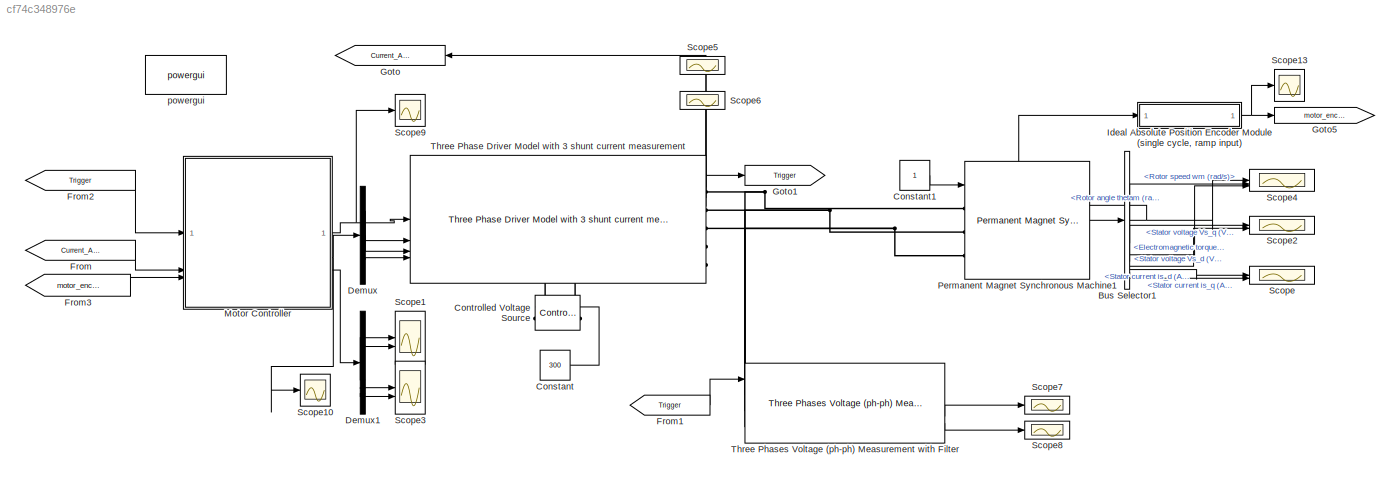
MODEL slx_cf74c348976e
KIND model
CONFIG AbsTol = auto
CONFIG EnableMultiTasking = off
CONFIG FixedStep = auto
CONFIG MaxStep = auto
CONFIG MinStep = auto
CONFIG RelTol = 1e-3
CONFIG SampleTimeConstraint = Unconstrained
CONFIG SolverName = VariableStepAuto
CONFIG StartTime = 0.0
CONFIG StopTime = 2.5
BLOCK [BusSelector] Bus Selector1
  OutputSignals = Rotor angle thetam (rad),Rotor speed wm (rad/s),Electromagnetic torque Te (N*m),Stator voltage Vs_q (V),Stator voltage Vs_d (V),Stator current is_d (A),Stator current is_q (A)
BLOCK [Constant] Constant
  Value = 300
BLOCK [Constant] Constant1
BLOCK [Reference] Controlled Voltage Source  REF=spsControlledVoltageSourceLib/Controlled Voltage Source
  LibrarySourceBlock = sps_lib/Sources/Controlled Voltage Source
  NameLocation = right
  SourceBlock = spsControlledVoltageSourceLib/Controlled Voltage Source
  SourceType = Controlled Voltage Source
BLOCK [Demux] Demux
  Outputs = 3
BLOCK [Demux] Demux1
BLOCK [From] From
  GotoTag = Current_ADC
  NameLocation = top
BLOCK [From] From1
  GotoTag = Trigger
BLOCK [From] From2
  GotoTag = Trigger
BLOCK [From] From3
  GotoTag = motor_encoder
BLOCK [Goto] Goto
  GotoTag = Current_ADC
  NameLocation = top
BLOCK [Goto] Goto1
  GotoTag = Trigger
BLOCK [Goto] Goto5
  GotoTag = motor_encoder
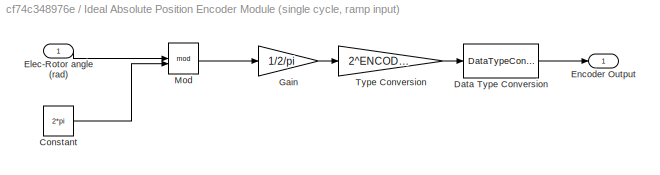
BLOCK [SubSystem] Ideal Absolute Position Encoder Module (single cycle, ramp input)
BLOCK [Constant] Ideal Absolute Position Encoder Module (single cycle, ramp input)/Constant
  Value = 2*pi
BLOCK [DataTypeConversion] Ideal Absolute Position Encoder Module (single cycle, ramp input)/Data Type Conversion
  OutDataTypeStr = uint32
  RndMeth = Floor
  SaturateOnIntegerOverflow = off
BLOCK [Inport] Ideal Absolute Position Encoder Module (single cycle, ramp input)/Elec-Rotor angle (rad)
BLOCK [Outport] Ideal Absolute Position Encoder Module (single cycle, ramp input)/Encoder Output
BLOCK [Gain] Ideal Absolute Position Encoder Module (single cycle, ramp input)/Gain
  Gain = 1/2/pi
BLOCK [Math] Ideal Absolute Position Encoder Module (single cycle, ramp input)/Mod
  Operator = mod
BLOCK [Gain] Ideal Absolute Position Encoder Module (single cycle, ramp input)/Type Conversion
  Gain = 2^ENCODER_BIT
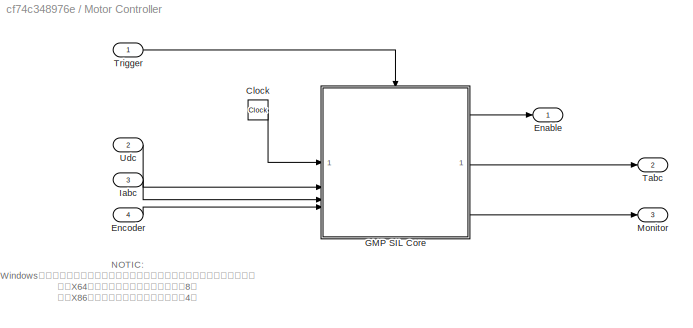
BLOCK [SubSystem] Motor Controller
BLOCK [Clock] Motor Controller/Clock
BLOCK [Outport] Motor Controller/Enable
BLOCK [Inport] Motor Controller/Encoder
  Port = 4
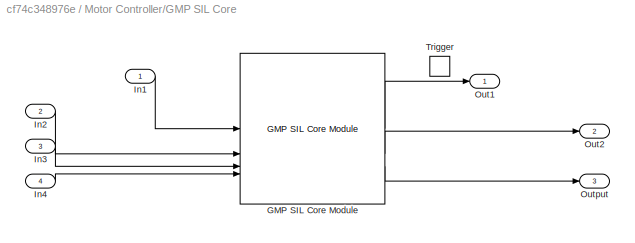
BLOCK [SubSystem] Motor Controller/GMP SIL Core
BLOCK [Reference] Motor Controller/GMP SIL Core/GMP SIL Core Module  REF=gmp_sil_core_pack/GMP SIL Core Module
  SourceBlock = gmp_sil_core_pack/GMP SIL Core Module
  SourceProductName = GMP Utilities Library
  SourceType = GMP CTL SIL Core
BLOCK [Inport] Motor Controller/GMP SIL Core/In1
BLOCK [Inport] Motor Controller/GMP SIL Core/In2
  Port = 2
BLOCK [Inport] Motor Controller/GMP SIL Core/In3
  Port = 3
BLOCK [Inport] Motor Controller/GMP SIL Core/In4
  Port = 4
BLOCK [Outport] Motor Controller/GMP SIL Core/Out1
BLOCK [Outport] Motor Controller/GMP SIL Core/Out2
  Port = 2
BLOCK [Outport] Motor Controller/GMP SIL Core/Output
  Port = 3
BLOCK [TriggerPort] Motor Controller/GMP SIL Core/Trigger
  PortDimensions = 1
  StatesWhenEnabling = held
  VariantControl = (inherit)
BLOCK [Inport] Motor Controller/Iabc
  Port = 3
BLOCK [Outport] Motor Controller/Monitor
  Port = 3
BLOCK [Outport] Motor Controller/Tabc
  Port = 2
BLOCK [Inport] Motor Controller/Trigger
BLOCK [Inport] Motor Controller/Udc
  Port = 2
BLOCK [Reference] Permanent Magnet Synchronous Machine1  REF=spsPermanentMagnetSynchronousMachineLib/Permanent Magnet
Synchronous Machine
  LibrarySourceBlock = sps_lib/Electrical Machines/Permanent Magnet\nSynchronous Machine
  SourceBlock = spsPermanentMagnetSynchronousMachineLib/Permanent Magnet\nSynchronous Machine
  SourceType = Permanent Magnet Synchronous Machine
BLOCK [Scope] Scope
  Floating = off
  NumInputPorts = 2
  ScopeSpecificationString = Simulink.scopes.TimeScopeBlockCfg('CurrentConfiguration', extmgr.ConfigurationSet(extmgr.Configuration('Core','General UI',true),extmgr.Configuration('Core','Source UI',true),extmgr.Configuration('Sources','WiredSimulink',true,'DataLoggingVariableName','ScopeData1'),extmgr.Configuration('Visuals','Time Domain',true,'SerializedDisplays',{struct('MinYLimReal','-50.32485','MaxYLimReal','50.48482','YL...<+1447ch>
BLOCK [Scope] Scope1
  Floating = off
  NumInputPorts = 2
  ScopeSpecificationString = Simulink.scopes.TimeScopeBlockCfg('CurrentConfiguration', extmgr.ConfigurationSet(extmgr.Configuration('Core','General UI',true),extmgr.Configuration('Core','Source UI',true),extmgr.Configuration('Sources','WiredSimulink',true),extmgr.Configuration('Visuals','Time Domain',true,'SerializedDisplays',{struct('MinYLimReal','-2868400.00000','MaxYLimReal','18959920.00000','YLabelReal','','MinYLimMag',' ...<+1514ch>
BLOCK [Scope] Scope10
  Floating = off
  NumInputPorts = 1
  ScopeSpecificationString = Simulink.scopes.TimeScopeBlockCfg('CurrentConfiguration', extmgr.ConfigurationSet(extmgr.Configuration('Core','General UI',true),extmgr.Configuration('Core','Source UI',true),extmgr.Configuration('Sources','WiredSimulink',true,'DataLoggingVariableName','ScopeData11'),extmgr.Configuration('Visuals','Time Domain',true,'SerializedDisplays',{struct('MinYLimReal','-1200.125','MaxYLimReal','10801.125','...<+1540ch>
BLOCK [Scope] Scope13
  Floating = off
  NumInputPorts = 1
  ScopeSpecificationString = Simulink.scopes.TimeScopeBlockCfg('CurrentConfiguration', extmgr.ConfigurationSet(extmgr.Configuration('Core','General UI',true),extmgr.Configuration('Core','Source UI',true),extmgr.Configuration('Sources','WiredSimulink',true,'DataLoggingVariableName','ScopeData2'),extmgr.Configuration('Visuals','Time Domain',true,'SerializedDisplays',{struct('MinYLimReal','-16383.875','MaxYLimReal','147454.875',...<+1804ch>
BLOCK [Scope] Scope2
  Floating = off
  NumInputPorts = 2
  ScopeSpecificationString = Simulink.scopes.TimeScopeBlockCfg('CurrentConfiguration', extmgr.ConfigurationSet(extmgr.Configuration('Core','General UI',true),extmgr.Configuration('Core','Source UI',true),extmgr.Configuration('Sources','WiredSimulink',true,'DataLoggingVariableName','ScopeData3'),extmgr.Configuration('Visuals','Time Domain',true,'SerializedDisplays',{struct('MinYLimReal','-250.53448','MaxYLimReal','250.55791','...<+2091ch>
BLOCK [Scope] Scope3
  Floating = off
  NumInputPorts = 2
  ScopeSpecificationString = Simulink.scopes.TimeScopeBlockCfg('CurrentConfiguration', extmgr.ConfigurationSet(extmgr.Configuration('Core','General UI',true),extmgr.Configuration('Core','Source UI',true),extmgr.Configuration('Sources','WiredSimulink',true,'DataLoggingVariableName','ScopeData5'),extmgr.Configuration('Visuals','Time Domain',true,'SerializedDisplays',{struct('MinYLimReal','-0.13728','MaxYLimReal','0.04804','YLab...<+2127ch>
BLOCK [Scope] Scope4
  Floating = off
  NumInputPorts = 3
  ScopeSpecificationString = Simulink.scopes.TimeScopeBlockCfg('CurrentConfiguration', extmgr.ConfigurationSet(extmgr.Configuration('Core','General UI',true),extmgr.Configuration('Core','Source UI',true),extmgr.Configuration('Sources','WiredSimulink',true,'DataLoggingVariableName','ScopeData4'),extmgr.Configuration('Visuals','Time Domain',true,'SerializedDisplays',{struct('MinYLimReal','-46.92169','MaxYLimReal','422.29435','Y...<+3207ch>
BLOCK [Scope] Scope5
  Floating = off
  NumInputPorts = 1
  ScopeSpecificationString = Simulink.scopes.TimeScopeBlockCfg('CurrentConfiguration', extmgr.ConfigurationSet(extmgr.Configuration('Core','General UI',true),extmgr.Configuration('Core','Source UI',true),extmgr.Configuration('Sources','WiredSimulink',true,'DataLoggingVariableName','ScopeData6'),extmgr.Configuration('Visuals','Time Domain',true,'SerializedDisplays',{struct('MinYLimReal','0.1493','MaxYLimReal','0.75933','YLabel...<+1617ch>
BLOCK [Scope] Scope6
  Floating = off
  NumInputPorts = 1
  ScopeSpecificationString = Simulink.scopes.TimeScopeBlockCfg('CurrentConfiguration', extmgr.ConfigurationSet(extmgr.Configuration('Core','General UI',true),extmgr.Configuration('Core','Source UI',true),extmgr.Configuration('Sources','WiredSimulink',true,'DataLoggingVariableName','ScopeData7'),extmgr.Configuration('Visuals','Time Domain',true,'SerializedDisplays',{struct('MinYLimReal','-1.00679','MaxYLimReal','1.00665','YLab...<+1815ch>
BLOCK [Scope] Scope7
  Floating = off
  NumInputPorts = 1
  ScopeSpecificationString = Simulink.scopes.TimeScopeBlockCfg('CurrentConfiguration', extmgr.ConfigurationSet(extmgr.Configuration('Core','General UI',true),extmgr.Configuration('Core','Source UI',true),extmgr.Configuration('Sources','WiredSimulink',true,'DataLoggingVariableName','ScopeData8'),extmgr.Configuration('Visuals','Time Domain',true,'SerializedDisplays',{struct('MinYLimReal','-0.07262','MaxYLimReal','1.07181','YLab...<+1607ch>
BLOCK [Scope] Scope8
  Floating = off
  NumInputPorts = 1
  ScopeSpecificationString = Simulink.scopes.TimeScopeBlockCfg('CurrentConfiguration', extmgr.ConfigurationSet(extmgr.Configuration('Core','General UI',true),extmgr.Configuration('Core','Source UI',true),extmgr.Configuration('Sources','WiredSimulink',true,'DataLoggingVariableName','ScopeData9'),extmgr.Configuration('Visuals','Time Domain',true,'SerializedDisplays',{struct('MinYLimReal','-323.96137','MaxYLimReal','326.79729','...<+1823ch>
BLOCK [Scope] Scope9
  Floating = off
  NumInputPorts = 1
  ScopeSpecificationString = Simulink.scopes.TimeScopeBlockCfg('CurrentConfiguration', extmgr.ConfigurationSet(extmgr.Configuration('Core','General UI',true),extmgr.Configuration('Core','Source UI',true),extmgr.Configuration('Sources','WiredSimulink',true,'DataLoggingVariableName','ScopeData10'),extmgr.Configuration('Visuals','Time Domain',true,'SerializedDisplays',{struct('MinYLimReal','-0.125','MaxYLimReal','1.125','YLabelR...<+1396ch>
BLOCK [Reference] Three Phase Driver Model with 3 shunt current measurement  REF=peripheral_utilities/Three Phase Driver Model with 3 shunt current measurement
  SourceBlock = peripheral_utilities/Three Phase Driver Model with 3 shunt current measurement
  SourceProductName = GMP Utilities Library
BLOCK [Reference] Three Phases Voltage (ph-ph) Measurement with Filter  REF=peripheral_utilities/Three Phases Voltage (ph-ph) Measurement with Filter
  SourceBlock = peripheral_utilities/Three Phases Voltage (ph-ph) Measurement with Filter
  SourceProductName = GMP Utilities Library
BLOCK [Reference] powergui  REF=spspowerguiLib/powergui
  LibrarySourceBlock = sps_lib/powergui
  Priority = 1
  SourceBlock = spspowerguiLib/powergui
  SourceType = PSB option menu block
ANNOTATION Motor Controller: NOTIC: Windows平台下必须设置为正确的内存对齐方式，否则会导致收到的数据乱码！ 对于X64的编译方式，默认的内存对齐为8； 对于X86的编译方式，默认的内存对齐为4。
NET Bus Selector1:1 -> Ideal Absolute Position Encoder Module (single cycle, ramp input):1, Scope4:1
LINE Bus Selector1:2 -> Scope4:2
LINE Bus Selector1:3 -> Scope4:3
LINE Bus Selector1:4 -> Scope2:1
LINE Bus Selector1:5 -> Scope2:2
LINE Bus Selector1:6 -> Scope:1
LINE Bus Selector1:7 -> Scope:2
LINE Constant1:1 -> Permanent Magnet Synchronous Machine1:1
LINE Constant:1 -> Controlled Voltage Source:1
LINE Demux1:1 -> Scope1:1
LINE Demux1:2 -> Scope1:2
LINE Demux1:3 -> Scope3:1
LINE Demux1:4 -> Scope3:2
LINE Demux:1 -> Three Phase Driver Model with 3 shunt current measurement:2
LINE Demux:2 -> Three Phase Driver Model with 3 shunt current measurement:3
LINE Demux:3 -> Three Phase Driver Model with 3 shunt current measurement:4
LINE From1:1 -> Three Phases Voltage (ph-ph) Measurement with Filter:1
LINE From2:1 -> Motor Controller:1
LINE From3:1 -> Motor Controller:4
LINE From:1 -> Motor Controller:3
LINE Ideal Absolute Position Encoder Module (single cycle, ramp input)/Constant:1 -> Ideal Absolute Position Encoder Module (single cycle, ramp input)/Mod:2
LINE Ideal Absolute Position Encoder Module (single cycle, ramp input)/Data Type Conversion:1 -> Ideal Absolute Position Encoder Module (single cycle, ramp input)/Encoder Output:1
LINE Ideal Absolute Position Encoder Module (single cycle, ramp input)/Elec-Rotor angle (rad):1 -> Ideal Absolute Position Encoder Module (single cycle, ramp input)/Mod:1
LINE Ideal Absolute Position Encoder Module (single cycle, ramp input)/Gain:1 -> Ideal Absolute Position Encoder Module (single cycle, ramp input)/Type Conversion:1
LINE Ideal Absolute Position Encoder Module (single cycle, ramp input)/Mod:1 -> Ideal Absolute Position Encoder Module (single cycle, ramp input)/Gain:1
LINE Ideal Absolute Position Encoder Module (single cycle, ramp input)/Type Conversion:1 -> Ideal Absolute Position Encoder Module (single cycle, ramp input)/Data Type Conversion:1
NET Ideal Absolute Position Encoder Module (single cycle, ramp input):1 -> Goto5:1, Scope13:1
LINE Motor Controller/Clock:1 -> Motor Controller/GMP SIL Core:1
LINE Motor Controller/Encoder:1 -> Motor Controller/GMP SIL Core:4
LINE Motor Controller/GMP SIL Core/GMP SIL Core Module:1 -> Motor Controller/GMP SIL Core/Out1:1
LINE Motor Controller/GMP SIL Core/GMP SIL Core Module:2 -> Motor Controller/GMP SIL Core/Out2:1
LINE Motor Controller/GMP SIL Core/GMP SIL Core Module:3 -> Motor Controller/GMP SIL Core/Output:1
LINE Motor Controller/GMP SIL Core/In1:1 -> Motor Controller/GMP SIL Core/GMP SIL Core Module:1
LINE Motor Controller/GMP SIL Core/In2:1 -> Motor Controller/GMP SIL Core/GMP SIL Core Module:2
LINE Motor Controller/GMP SIL Core/In3:1 -> Motor Controller/GMP SIL Core/GMP SIL Core Module:3
LINE Motor Controller/GMP SIL Core/In4:1 -> Motor Controller/GMP SIL Core/GMP SIL Core Module:4
LINE Motor Controller/GMP SIL Core:1 -> Motor Controller/Enable:1
LINE Motor Controller/GMP SIL Core:2 -> Motor Controller/Tabc:1
LINE Motor Controller/GMP SIL Core:3 -> Motor Controller/Monitor:1
LINE Motor Controller/Iabc:1 -> Motor Controller/GMP SIL Core:3
LINE Motor Controller/Trigger:1 -> Motor Controller/GMP SIL Core:trigger
LINE Motor Controller/Udc:1 -> Motor Controller/GMP SIL Core:2
NET Motor Controller:1 -> Scope9:1, Three Phase Driver Model with 3 shunt current measurement:1
NET Motor Controller:2 -> Demux:1, Scope10:1
LINE Motor Controller:3 -> Demux1:1
LINE Permanent Magnet Synchronous Machine1:1 -> Bus Selector1:1
LINE Three Phase Driver Model with 3 shunt current measurement:1 -> Goto1:1
LINE Three Phase Driver Model with 3 shunt current measurement:2 -> Goto:1
LINE Three Phase Driver Model with 3 shunt current measurement:3 -> Scope5:1
LINE Three Phase Driver Model with 3 shunt current measurement:4 -> Scope6:1
LINE Three Phases Voltage (ph-ph) Measurement with Filter:2 -> Scope7:1
LINE Three Phases Voltage (ph-ph) Measurement with Filter:3 -> Scope8:1
PLINE Controlled Voltage Source:LConn1 -- Three Phase Driver Model with 3 shunt current measurement:RConn5
PLINE Controlled Voltage Source:RConn1 -- Three Phase Driver Model with 3 shunt current measurement:RConn4
PNET net1: Permanent Magnet Synchronous Machine1:LConn1 -- Three Phase Driver Model with 3 shunt current measurement:RConn1 -- Three Phases Voltage (ph-ph) Measurement with Filter:LConn1
PNET net2: Permanent Magnet Synchronous Machine1:LConn2 -- Three Phase Driver Model with 3 shunt current measurement:RConn2 -- Three Phases Voltage (ph-ph) Measurement with Filter:LConn2
PNET net3: Permanent Magnet Synchronous Machine1:LConn3 -- Three Phase Driver Model with 3 shunt current measurement:RConn3 -- Three Phases Voltage (ph-ph) Measurement with Filter:LConn3
note: NET lines group one-source signal fan-out (src -> all destinations, sorted); 1:1 wires keep LINE; PNET lines group multi-terminal physical nets as a canonical sorted terminal list (undirected conserving connections); 2-terminal nets keep the pairwise PLINE form
